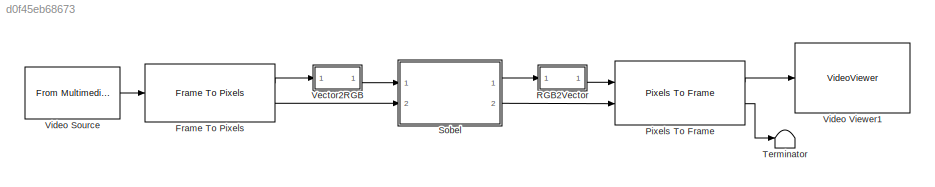
MODEL slx_d0f45eb68673
KIND model
CONFIG AbsTol = auto
CONFIG EnableMultiTasking = off
CONFIG FixedStep = auto
CONFIG InitFcn = Ts = 1e-3;\nTs_240p = 402*324*Ts;\nTs_480p = 525*800*Ts;\n\n
CONFIG MaxStep = auto
CONFIG MinStep = auto
CONFIG RelTol = 1e-3
CONFIG SampleTimeConstraint = Unconstrained
CONFIG SolverName = VariableStepAuto
CONFIG StartTime = 0.0
CONFIG StopTime = Ts_480p*2
BLOCK [Reference] Frame To Pixels  REF=visionhdlio/Frame To Pixels
  Ports = [1, 2]
  SourceBlock = visionhdlio/Frame To Pixels
  SourceProductBaseCode = VT
  SourceType = Frame To Pixels
BLOCK [Reference] Pixels To Frame  REF=visionhdlio/Pixels To Frame
  Ports = [2, 2]
  SourceBlock = visionhdlio/Pixels To Frame
  SourceProductBaseCode = VT
  SourceType = Pixels To Frame
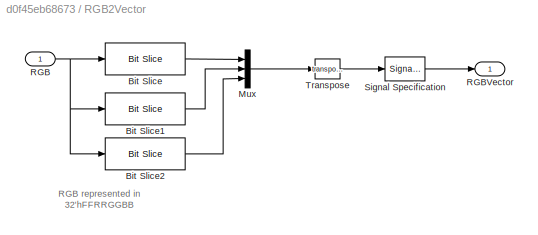
BLOCK [SubSystem] RGB2Vector
  Ports = [1, 1]
  RequestExecContextInheritance = off
  ShowPortLabels = none
BLOCK [Reference] RGB2Vector/Bit Slice  REF=hdlsllib/Logic and Bit
Operations/Bit Slice
  Ports = [1, 1]
  SourceBlock = hdlsllib/Logic and Bit\nOperations/Bit Slice
  SourceProductBaseCode = SL
  SourceType = Bit Slice
BLOCK [Reference] RGB2Vector/Bit Slice1  REF=hdlsllib/Logic and Bit
Operations/Bit Slice
  Ports = [1, 1]
  SourceBlock = hdlsllib/Logic and Bit\nOperations/Bit Slice
  SourceProductBaseCode = SL
  SourceType = Bit Slice
BLOCK [Reference] RGB2Vector/Bit Slice2  REF=hdlsllib/Logic and Bit
Operations/Bit Slice
  Ports = [1, 1]
  SourceBlock = hdlsllib/Logic and Bit\nOperations/Bit Slice
  SourceProductBaseCode = SL
  SourceType = Bit Slice
BLOCK [Mux] RGB2Vector/Mux
  DisplayOption = bar
  Inputs = 3
  Ports = [3, 1]
BLOCK [Inport] RGB2Vector/RGB
BLOCK [Outport] RGB2Vector/RGBVector
  VectorParamsAs1DForOutWhenUnconnected = off
BLOCK [SignalSpecification] RGB2Vector/Signal Specification
  SignalType = real
BLOCK [Math] RGB2Vector/Transpose
  Operator = transpose
  Ports = [1, 1]
  SignedPower = on
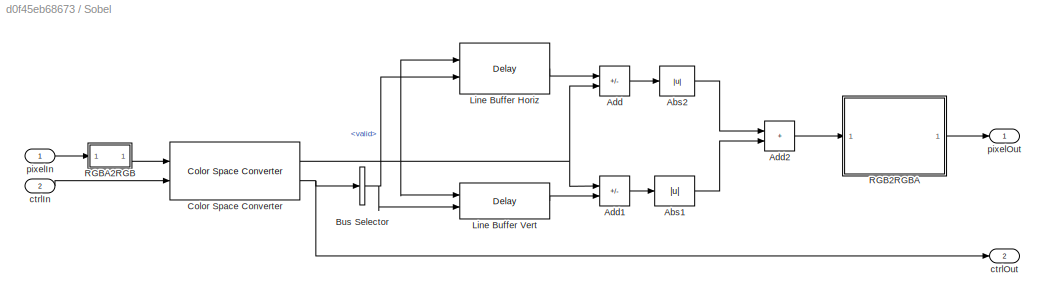
BLOCK [SubSystem] Sobel
  Ports = [2, 2]
  RequestExecContextInheritance = off
  TreatAsAtomicUnit = on
BLOCK [Abs] Sobel/Abs1
  SaturateOnIntegerOverflow = off
BLOCK [Abs] Sobel/Abs2
  SaturateOnIntegerOverflow = off
BLOCK [Sum] Sobel/Add
  IconShape = rectangular
  Inputs = +|-
  OutDataTypeStr = fixdt(1,12,0)
  Ports = [2, 1]
BLOCK [Sum] Sobel/Add1
  IconShape = rectangular
  Inputs = +|-
  OutDataTypeStr = fixdt(1,12,0)
  Ports = [2, 1]
BLOCK [Sum] Sobel/Add2
  IconShape = rectangular
  Inputs = +|+
  OutDataTypeStr = fixdt(1,12,0)
  Ports = [2, 1]
BLOCK [BusSelector] Sobel/Bus Selector
  OutputSignals = valid
  Ports = [1, 1]
BLOCK [Reference] Sobel/Color Space Converter  REF=visionhdlconversions/Color Space Converter
  Ports = [2, 2]
  SourceBlock = visionhdlconversions/Color Space Converter
  SourceProductBaseCode = VT
  SourceType = Color Space Converter
BLOCK [Delay] Sobel/Line Buffer Horiz
  DelayLength = 640
  InitialCondition = 0
  InputPortMap = u0,e6
  Ports = [2, 1]
  ShowEnablePort = on
BLOCK [Delay] Sobel/Line Buffer Vert
  DelayLength = 1
  InitialCondition = 0
  InputPortMap = u0,e6
  Ports = [2, 1]
  ShowEnablePort = on
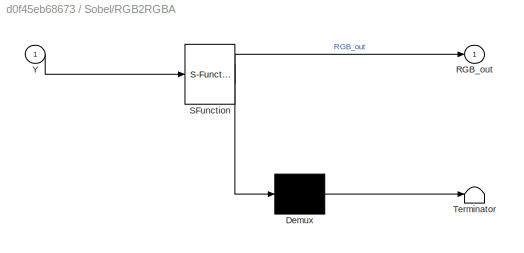
BLOCK [SubSystem] Sobel/RGB2RGBA
  ErrorFcn = Stateflow.Translate.translate
  PermitHierarchicalResolution = ExplicitOnly
  Ports = [1, 1]
  RequestExecContextInheritance = off
  SFBlockType = MATLAB Function
  TreatAsAtomicUnit = on
BLOCK [Demux] Sobel/RGB2RGBA/ Demux 
  Outputs = 1
  Ports = [1, 1]
BLOCK [S-Function] Sobel/RGB2RGBA/ SFunction 
  EnableBusSupport = on
  FunctionName = sf_sfun
  PortCounts = [1 2]
  Ports = [1, 2]
  SFcnIsStateOwnerBlock = off
  SFunctionDeploymentMode = off
  Tag = Stateflow S-Function 1
BLOCK [Terminator] Sobel/RGB2RGBA/ Terminator 
BLOCK [Outport] Sobel/RGB2RGBA/RGB_out
BLOCK [Inport] Sobel/RGB2RGBA/Y
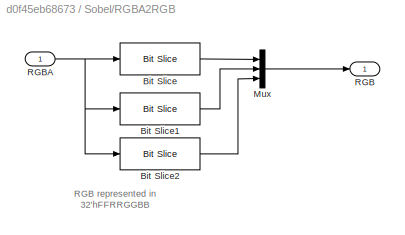
BLOCK [SubSystem] Sobel/RGBA2RGB
  Ports = [1, 1]
  RequestExecContextInheritance = off
  ShowPortLabels = none
BLOCK [Reference] Sobel/RGBA2RGB/Bit Slice  REF=hdlsllib/Logic and Bit
Operations/Bit Slice
  Ports = [1, 1]
  SourceBlock = hdlsllib/Logic and Bit\nOperations/Bit Slice
  SourceProductBaseCode = SL
  SourceType = Bit Slice
BLOCK [Reference] Sobel/RGBA2RGB/Bit Slice1  REF=hdlsllib/Logic and Bit
Operations/Bit Slice
  Ports = [1, 1]
  SourceBlock = hdlsllib/Logic and Bit\nOperations/Bit Slice
  SourceProductBaseCode = SL
  SourceType = Bit Slice
BLOCK [Reference] Sobel/RGBA2RGB/Bit Slice2  REF=hdlsllib/Logic and Bit
Operations/Bit Slice
  Ports = [1, 1]
  SourceBlock = hdlsllib/Logic and Bit\nOperations/Bit Slice
  SourceProductBaseCode = SL
  SourceType = Bit Slice
BLOCK [Mux] Sobel/RGBA2RGB/Mux
  DisplayOption = bar
  Inputs = 3
  Ports = [3, 1]
BLOCK [Outport] Sobel/RGBA2RGB/RGB
  VectorParamsAs1DForOutWhenUnconnected = off
BLOCK [Inport] Sobel/RGBA2RGB/RGBA
BLOCK [Inport] Sobel/ctrlIn
  Port = 2
BLOCK [Outport] Sobel/ctrlOut
  Port = 2
  VectorParamsAs1DForOutWhenUnconnected = off
BLOCK [Inport] Sobel/pixelIn
BLOCK [Outport] Sobel/pixelOut
BLOCK [Terminator] Terminator
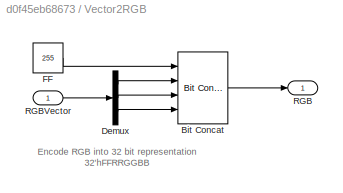
BLOCK [SubSystem] Vector2RGB
  Ports = [1, 1]
  RequestExecContextInheritance = off
  ShowPortLabels = none
BLOCK [Reference] Vector2RGB/Bit Concat  REF=hdlsllib/Logic and Bit
Operations/Bit Concat
  Ports = [4, 1]
  SourceBlock = hdlsllib/Logic and Bit\nOperations/Bit Concat
  SourceProductBaseCode = SL
  SourceType = Bit Concat
BLOCK [Demux] Vector2RGB/Demux
  Outputs = 3
  Ports = [1, 3]
BLOCK [Constant] Vector2RGB/FF
  OutDataTypeStr = uint8
  SampleTime = Ts
  Value = 255
BLOCK [Outport] Vector2RGB/RGB
  VectorParamsAs1DForOutWhenUnconnected = off
BLOCK [Inport] Vector2RGB/RGBVector
BLOCK [Reference] Video Source  REF=dspvision/From Multimedia File
  Ports = [0, 1]
  SourceBlock = dspvision/From Multimedia File
  SourceProductBaseCode = DS,HW,VP
  SourceType = From Multimedia File
BLOCK [VideoViewer] Video Viewer1
  FigPos = [430.6 726 588 436]
  Ports = [1]
  ScopeSpecificationString = vipscopes.VideoViewerScopeCfg('CurrentConfiguration', extmgr.ConfigurationSet(extmgr.Configuration('Core','General UI',true),extmgr.Configuration('Core','Source UI',true),extmgr.Configuration('Sources','WiredSimulink',true),extmgr.Configuration('Sources','Streaming',false),extmgr.Configuration('Sources','SimulinkEvent',false),extmgr.Configuration('Sources','Workspace',false),extmgr.Configuration('...<+931ch>
  colormapValue = gray(256)
ANNOTATION RGB2Vector: RGB represented in 32'hFFRRGGBB
ANNOTATION Sobel/RGBA2RGB: RGB represented in 32'hFFRRGGBB
ANNOTATION Vector2RGB: Encode RGB into 32 bit representation 32'hFFRRGGBB
LINE Frame To Pixels:1 -> Vector2RGB:1
LINE Frame To Pixels:2 -> Sobel:2
LINE Pixels To Frame:1 -> Video Viewer1:1
LINE Pixels To Frame:2 -> Terminator:1
LINE RGB2Vector/Bit Slice1:1 -> RGB2Vector/Mux:2
LINE RGB2Vector/Bit Slice2:1 -> RGB2Vector/Mux:3
LINE RGB2Vector/Bit Slice:1 -> RGB2Vector/Mux:1
LINE RGB2Vector/Mux:1 -> RGB2Vector/Transpose:1
NET RGB2Vector/RGB:1 -> RGB2Vector/Bit Slice1:1, RGB2Vector/Bit Slice2:1, RGB2Vector/Bit Slice:1
LINE RGB2Vector/Signal Specification:1 -> RGB2Vector/RGBVector:1
LINE RGB2Vector/Transpose:1 -> RGB2Vector/Signal Specification:1
LINE RGB2Vector:1 -> Pixels To Frame:1
LINE Sobel/Abs1:1 -> Sobel/Add2:2
LINE Sobel/Abs2:1 -> Sobel/Add2:1
LINE Sobel/Add1:1 -> Sobel/Abs1:1
LINE Sobel/Add2:1 -> Sobel/RGB2RGBA:1
LINE Sobel/Add:1 -> Sobel/Abs2:1
NET Sobel/Bus Selector:1 -> Sobel/Line Buffer Horiz:2, Sobel/Line Buffer Vert:2
NET Sobel/Color Space Converter:1 -> Sobel/Add1:1, Sobel/Add:2, Sobel/Line Buffer Horiz:1, Sobel/Line Buffer Vert:1
NET Sobel/Color Space Converter:2 -> Sobel/Bus Selector:1, Sobel/ctrlOut:1
LINE Sobel/Line Buffer Horiz:1 -> Sobel/Add:1
LINE Sobel/Line Buffer Vert:1 -> Sobel/Add1:2
LINE Sobel/RGB2RGBA:1 -> Sobel/pixelOut:1
LINE Sobel/RGBA2RGB/Bit Slice1:1 -> Sobel/RGBA2RGB/Mux:2
LINE Sobel/RGBA2RGB/Bit Slice2:1 -> Sobel/RGBA2RGB/Mux:3
LINE Sobel/RGBA2RGB/Bit Slice:1 -> Sobel/RGBA2RGB/Mux:1
LINE Sobel/RGBA2RGB/Mux:1 -> Sobel/RGBA2RGB/RGB:1
NET Sobel/RGBA2RGB/RGBA:1 -> Sobel/RGBA2RGB/Bit Slice1:1, Sobel/RGBA2RGB/Bit Slice2:1, Sobel/RGBA2RGB/Bit Slice:1
LINE Sobel/RGBA2RGB:1 -> Sobel/Color Space Converter:1
LINE Sobel/ctrlIn:1 -> Sobel/Color Space Converter:2
LINE Sobel/pixelIn:1 -> Sobel/RGBA2RGB:1
LINE Sobel:1 -> RGB2Vector:1
LINE Sobel:2 -> Pixels To Frame:2
LINE Vector2RGB/Bit Concat:1 -> Vector2RGB/RGB:1
LINE Vector2RGB/Demux:1 -> Vector2RGB/Bit Concat:2
LINE Vector2RGB/Demux:2 -> Vector2RGB/Bit Concat:3
LINE Vector2RGB/Demux:3 -> Vector2RGB/Bit Concat:4
LINE Vector2RGB/FF:1 -> Vector2RGB/Bit Concat:1
LINE Vector2RGB/RGBVector:1 -> Vector2RGB/Demux:1
LINE Vector2RGB:1 -> Sobel:1
LINE Video Source:1 -> Frame To Pixels:1
note: NET lines group one-source signal fan-out (src -> all destinations, sorted); 1:1 wires keep LINE
CHART Sobel/RGB2RGBA states=1 transitions=1
  STATE_LABEL 'eML_blk_kernel()'
  STATE_LABEL "SCRIPT:\nfunction RGB_out = Concat_Sig(Y)\n% 32'hAARRBBGG\nY = Y *2;\nRd = fi(Y, 0, 8, 0);\nGr = fi(Y, 0, 8, 0);\nBl = fi(Y, 0, 8, 0);\nAA = fi(255, 0, 8, 0);\nRGB_out = bitconcat(AA,Rd,Gr,Bl);\n"
CHART  states=0 transitions=0
